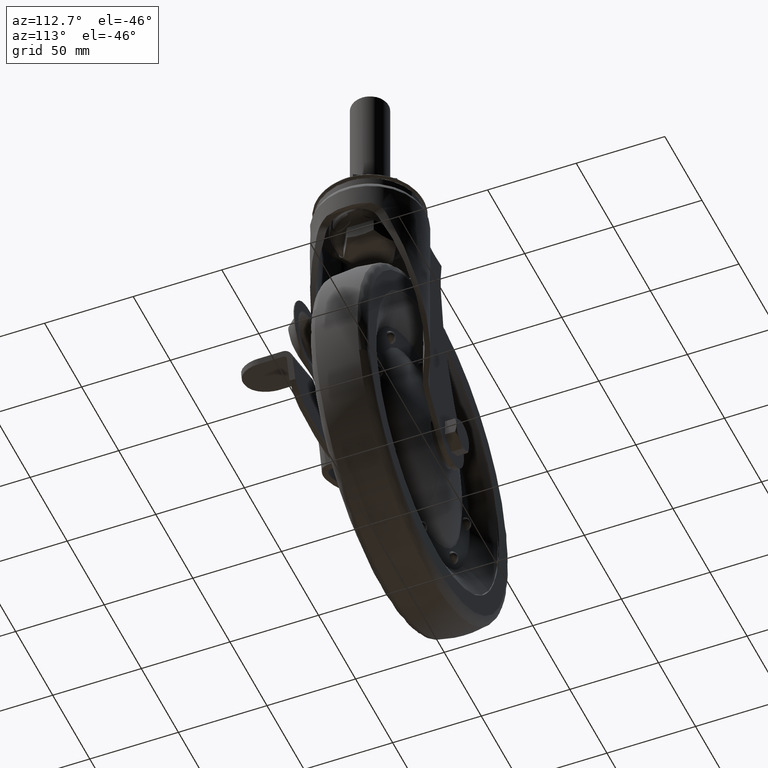
[diagram: clean part render]
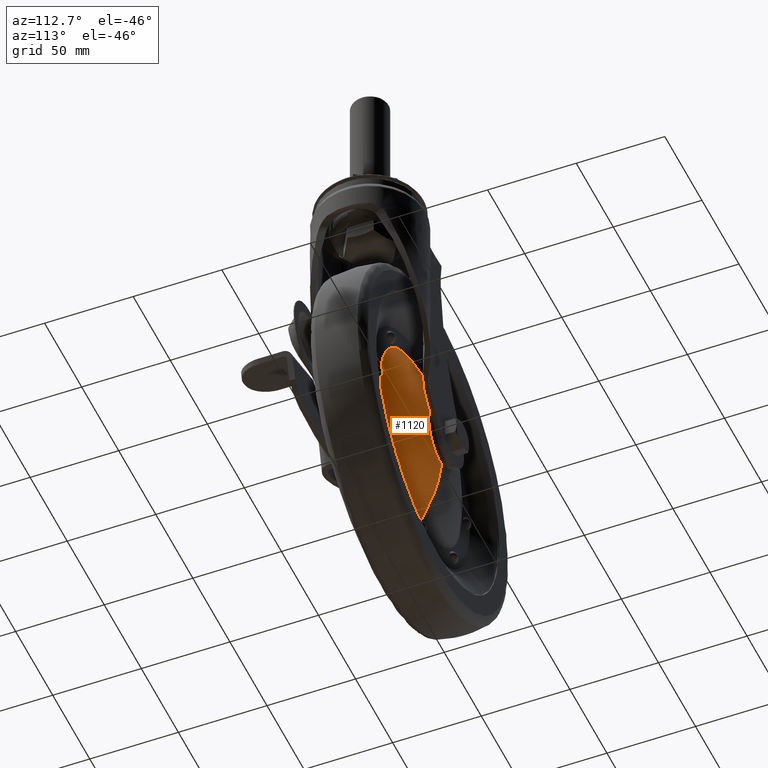
[diagram: same view with one face highlighted and labeled with its STEP entity id]
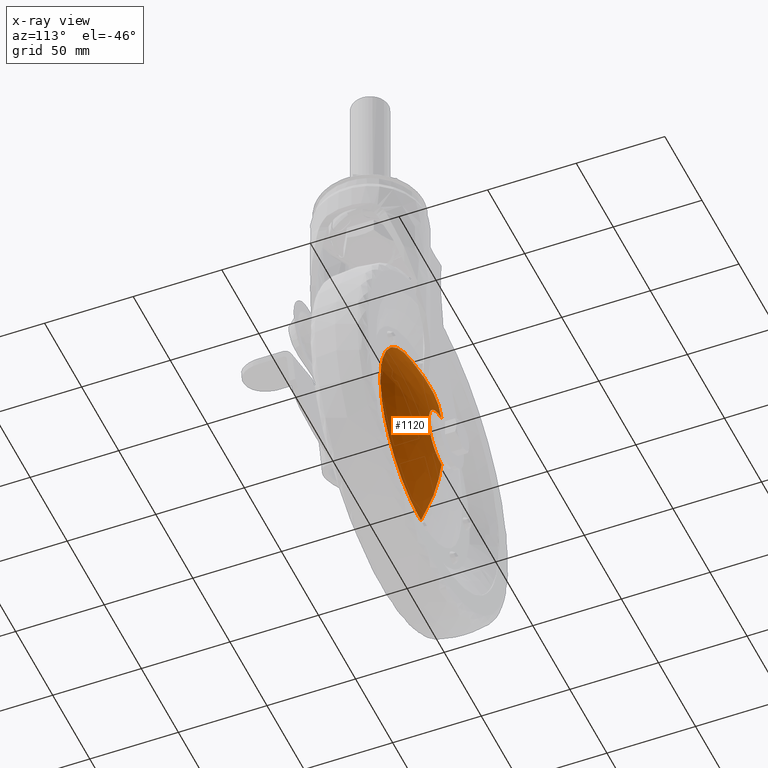
[diagram: x-ray of the same camera — body ghosted, the highlighted face saturated]
A machine part, auxiliary view. The second image highlights one B-rep face of the part: STEP entity #1120.
The next image is the same camera in x-ray: the body ghosted, the highlighted face saturated — about 0% of this face is hidden behind the body in this view.
In plain terms, the highlighted face is a freeform B-spline surface patch.
Its self-contained STEP definition (entity closure, byte-faithful):
#854=CARTESIAN_POINT('',(-53.0,18.151446179669119,-113.132535541542200));
#855=VERTEX_POINT('',#854);
#871=CARTESIAN_POINT('',(-53.0,18.151446295846199,-147.664058476101590));
#872=VERTEX_POINT('',#871);
#941=CARTESIAN_POINT('',(-53.0,18.151446295846199,-147.664058476101590));
#942=CARTESIAN_POINT('',(-51.304885609023529,18.151446295848611,-147.664777829682210));
#943=CARTESIAN_POINT('',(-48.409583918759672,18.151446294399669,-147.234100405774510));
#944=CARTESIAN_POINT('',(-44.875934347649988,18.151446289388801,-145.744713731896010));
#945=CARTESIAN_POINT('',(-42.214070226976922,18.151446283483960,-143.989588785343900));
#946=CARTESIAN_POINT('',(-39.992294951925587,18.151446276454159,-141.900185281972000));
#947=CARTESIAN_POINT('',(-37.980938704522572,18.151446267212972,-139.153308419665990));
#948=CARTESIAN_POINT('',(-36.590178836667441,18.151446256996909,-136.116824588191290));
#949=CARTESIAN_POINT('',(-35.721929599920642,18.151446244698739,-132.461371840625110));
#950=CARTESIAN_POINT('',(-35.650960592258073,18.151446231762570,-128.616400921675110));
#951=CARTESIAN_POINT('',(-36.435543298101727,18.151446220341469,-125.221647133339700));
#952=CARTESIAN_POINT('',(-37.754048435270697,18.151446209814502,-122.092733367412510));
#953=CARTESIAN_POINT('',(-39.500236266326702,18.151446200784370,-119.408573950793600));
#954=CARTESIAN_POINT('',(-42.446424686477307,18.151446191111621,-116.533704721714400));
#955=CARTESIAN_POINT('',(-45.564092109554153,18.151446184825151,-114.664985289237290));
#956=CARTESIAN_POINT('',(-49.256983207612677,18.151446180636700,-113.420267283046200));
#957=CARTESIAN_POINT('',(-51.587465613221099,18.151446179668572,-113.132181971658600));
#958=CARTESIAN_POINT('',(-53.0,18.151446179669119,-113.132535541542200));
#959=B_SPLINE_CURVE_WITH_KNOTS('',3,(#941,#942,#943,#944,#945,#946,#947,#948,#949,#950,#951,#952,#953,#954,#955,#956,#957,#958),.UNSPECIFIED.,.F.,.U.,(4,1,1,1,1,1,1,1,1,1,1,1,1,1,1,4),(0.000000839995067,5.085146927989065,8.687233327723980,11.441734949959571,14.620043995633131,17.798315626062550,21.612208883342070,24.578766514796349,29.028123407192268,33.053913097184392,34.960796827651990,39.198566852098132,42.588783210684532,47.250212632172058,50.004859102239543,54.242376096058749),.UNSPECIFIED.);
#960=EDGE_CURVE('',#872,#855,#959,.T.);
#997=CARTESIAN_POINT('',(-53.0,6.522029194849480,-75.787995244176031));
#998=VERTEX_POINT('',#997);
#999=CARTESIAN_POINT('',(-53.0,6.522029194849480,-75.787995244176031));
#1000=CARTESIAN_POINT('',(-52.999999999999993,16.129289250023362,-93.279231613666553));
#1001=CARTESIAN_POINT('',(-53.0,18.151446411976099,-113.132535517891840));
#1009=(BOUNDED_CURVE()B_SPLINE_CURVE(2,(#999,#1000,#1001),.UNSPECIFIED.,.F.,.U.)B_SPLINE_CURVE_WITH_KNOTS((3,3),(0.824942274398674,0.944963499374479),.UNSPECIFIED.)CURVE()GEOMETRIC_REPRESENTATION_ITEM()RATIONAL_B_SPLINE_CURVE((0.926860119265757,0.924201636784652,0.959568667703407))REPRESENTATION_ITEM(''));
#1010=EDGE_CURVE('',#998,#855,#1009,.T.);
#1013=CARTESIAN_POINT('',(-53.0,6.522029677957749,-185.008597882314210));
#1014=VERTEX_POINT('',#1013);
#1015=CARTESIAN_POINT('',(-53.0,6.522029677957749,-185.008597882314180));
#1016=CARTESIAN_POINT('',(-53.000000000000007,16.129289303022031,-167.517361872515410));
#1017=CARTESIAN_POINT('',(-53.000000000000007,18.151446411999697,-147.664058487926780));
#1025=(BOUNDED_CURVE()B_SPLINE_CURVE(2,(#1015,#1016,#1017),.UNSPECIFIED.,.F.,.U.)B_SPLINE_CURVE_WITH_KNOTS((3,3),(0.824942277425033,0.944963499375206),.UNSPECIFIED.)CURVE()GEOMETRIC_REPRESENTATION_ITEM()RATIONAL_B_SPLINE_CURVE((0.926860119131689,0.924201637676423,0.959568667703836))REPRESENTATION_ITEM(''));
#1026=EDGE_CURVE('',#1014,#872,#1025,.T.);
#1058=CARTESIAN_POINT('',(-54.575154006652767,5.547635038289542,-186.740851131272480));
#1059=CARTESIAN_POINT('',(-54.042240966896557,16.525337080369852,-167.678790112922830));
#1060=CARTESIAN_POINT('',(-53.429340280685594,18.327043025496245,-145.755606765624210));
#1061=CARTESIAN_POINT('',(-53.792163654616523,5.547635038289542,-186.740851131272450));
#1062=CARTESIAN_POINT('',(-53.524155358676524,16.525337080369855,-167.678790112922830));
#1063=CARTESIAN_POINT('',(-53.215920325495496,18.327043025496241,-145.755606765624260));
#1064=CARTESIAN_POINT('',(3.342554128247360,5.547635038289546,-186.740851131272340));
#1065=CARTESIAN_POINT('',(-15.719506890102203,16.525337080369869,-167.678790112922710));
#1066=CARTESIAN_POINT('',(-37.642690237400878,18.327043025496248,-145.755606765624150));
#1067=CARTESIAN_POINT('',(3.342554128247353,5.547635038289542,-130.398297003025050));
#1068=CARTESIAN_POINT('',(-15.719506890102222,16.525337080369852,-130.398297003025050));
#1069=CARTESIAN_POINT('',(-37.642690237400878,18.327043025496238,-130.398297003025050));
#1070=CARTESIAN_POINT('',(3.342554128247343,5.547635038289546,-74.055742874777721));
#1071=CARTESIAN_POINT('',(-15.719506890102251,16.525337080369869,-93.117803893127288));
#1072=CARTESIAN_POINT('',(-37.642690237400913,18.327043025496248,-115.040987240425950));
#1073=CARTESIAN_POINT('',(-53.792163654616530,5.547635038289542,-74.055742874777721));
#1074=CARTESIAN_POINT('',(-53.524155358676524,16.525337080369859,-93.117803893127274));
#1075=CARTESIAN_POINT('',(-53.215920325495489,18.327043025496241,-115.040987240425920));
#1076=CARTESIAN_POINT('',(-54.575154006652745,5.547635038289542,-74.055742874777735));
#1077=CARTESIAN_POINT('',(-54.042240966896557,16.525337080369855,-93.117803893127274));
#1078=CARTESIAN_POINT('',(-53.429340280685587,18.327043025496248,-115.040987240425890));
#1086=(BOUNDED_SURFACE()B_SPLINE_SURFACE(2,2,((#1058,#1061,#1064,#1067,#1070,#1073,#1076),(#1059,#1062,#1065,#1068,#1071,#1074,#1077),(#1060,#1063,#1066,#1069,#1072,#1075,#1078)),.UNSPECIFIED.,.F.,.F.,.U.)B_SPLINE_SURFACE_WITH_KNOTS((3,3),(3,1,2,1,3),(0.0,43.756324240478669),(0.0,1.867028004692849,95.218428239333932,188.569828473975010,190.436856478667810),.UNSPECIFIED.)GEOMETRIC_REPRESENTATION_ITEM()RATIONAL_B_SPLINE_SURFACE(((0.938083638909332,0.932652106538966,0.655643955650301,0.927220574168600,0.655643955650301,0.932652106538966,0.938083638909332),(0.933011724829064,0.927609558993157,0.652099101361859,0.922207393157249,0.652099101361859,0.927609558993156,0.933011724829064),(0.974481268872151,0.968838993133978,0.681082930487197,0.963196717395806,0.681082930487197,0.968838993133978,0.974481268872151)))REPRESENTATION_ITEM('')SURFACE());
#1087=ORIENTED_EDGE('',*,*,#1010,.F.);
#1088=CARTESIAN_POINT('',(-53.0,6.522029677957749,-185.008597882314210));
#1089=CARTESIAN_POINT('',(-49.760895499134683,6.522029677958995,-185.008882050372590));
#1090=CARTESIAN_POINT('',(-44.287956745612313,6.522029675797501,-184.520202577094410));
#1091=CARTESIAN_POINT('',(-37.221415167853962,6.522029668170896,-182.796002080824390));
#1092=CARTESIAN_POINT('',(-30.707601292177099,6.522029657662741,-180.420322640511100));
#1093=CARTESIAN_POINT('',(-24.541112698164529,6.522029643510835,-177.220869570438110));
#1094=CARTESIAN_POINT('',(-18.073304498687349,6.522029623098772,-172.606147316084500));
#1095=CARTESIAN_POINT('',(-12.702927525596291,6.522029600621087,-167.524406999890000));
#1096=CARTESIAN_POINT('',(-8.244142316304188,6.522029575822318,-161.917924396896210));
#1097=CARTESIAN_POINT('',(-4.135955974156616,6.522029546334884,-155.251453862309210));
#1098=CARTESIAN_POINT('',(-0.932029331892418,6.522029512992758,-147.713449896878810));
#1099=CARTESIAN_POINT('',(0.930854487251145,6.522029478288431,-139.867633534027790));
#1100=CARTESIAN_POINT('',(1.685968335383090,6.522029447301098,-132.861896186005590));
#1101=CARTESIAN_POINT('',(1.592823993150993,6.522029413631071,-125.249964417735300));
#1102=CARTESIAN_POINT('',(0.048840271092337,6.522029373536834,-116.185283346445400));
#1103=CARTESIAN_POINT('',(-3.246759706687449,6.522029333948392,-107.235704736148610));
#1104=CARTESIAN_POINT('',(-7.904149300917447,6.522029298357277,-99.188176600342914));
#1105=CARTESIAN_POINT('',(-12.720975151062410,6.522029272226806,-93.282003656130883));
#1106=CARTESIAN_POINT('',(-17.934814035194542,6.522029250543400,-88.378883301478041));
#1107=CARTESIAN_POINT('',(-22.778383664695351,6.522029234549966,-84.763552734137122));
#1108=CARTESIAN_POINT('',(-29.070680640008160,6.522029218443050,-81.121965091378485));
#1109=CARTESIAN_POINT('',(-36.224483951032262,6.522029205448906,-78.184311433856308));
#1110=CARTESIAN_POINT('',(-44.623008240743367,6.522029196748153,-76.217244165586777));
#1111=CARTESIAN_POINT('',(-50.207684496870549,6.522029194848833,-75.787848531971335));
#1112=CARTESIAN_POINT('',(-53.0,6.522029194849480,-75.787995244176031));
#1113=B_SPLINE_CURVE_WITH_KNOTS('',3,(#1088,#1089,#1090,#1091,#1092,#1093,#1094,#1095,#1096,#1097,#1098,#1099,#1100,#1101,#1102,#1103,#1104,#1105,#1106,#1107,#1108,#1109,#1110,#1111,#1112),.UNSPECIFIED.,.F.,.U.,(4,1,1,1,1,1,1,1,1,1,1,1,1,1,1,1,1,1,1,1,1,1,4),(0.000000536463602,9.717272471008840,16.419170846250321,21.780526637562730,30.492722194581230,37.194421116944802,45.571594191090803,52.608409189482657,58.639932837263153,69.027617205704900,77.069694225947217,82.766226079359157,90.137864891322181,99.855218575411655,110.242999497668000,118.620077279313800,127.667437354078200,133.028806765669200,140.065605185574610,145.762139714570990,154.809404218592190,163.186646762212290,171.563588495427300),.UNSPECIFIED.);
#1114=EDGE_CURVE('',#1014,#998,#1113,.T.);
#1115=ORIENTED_EDGE('',*,*,#1114,.F.);
#1116=ORIENTED_EDGE('',*,*,#1026,.T.);
#1117=ORIENTED_EDGE('',*,*,#960,.T.);
#1118=EDGE_LOOP('',(#1087,#1115,#1116,#1117));
#1119=FACE_OUTER_BOUND('',#1118,.T.);
#1120=ADVANCED_FACE('',(#1119),#1086,.T.);